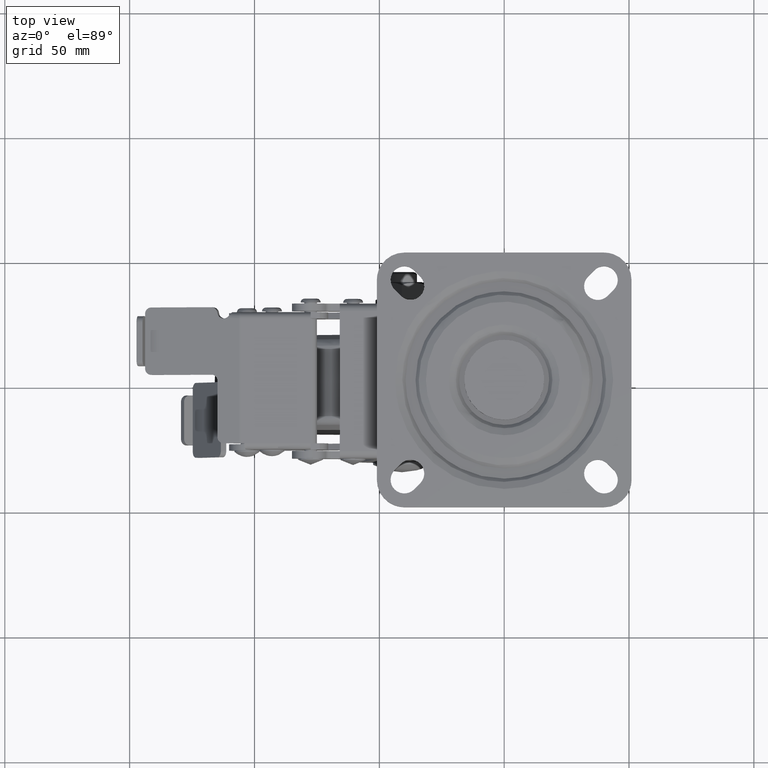
[diagram: clean part render]
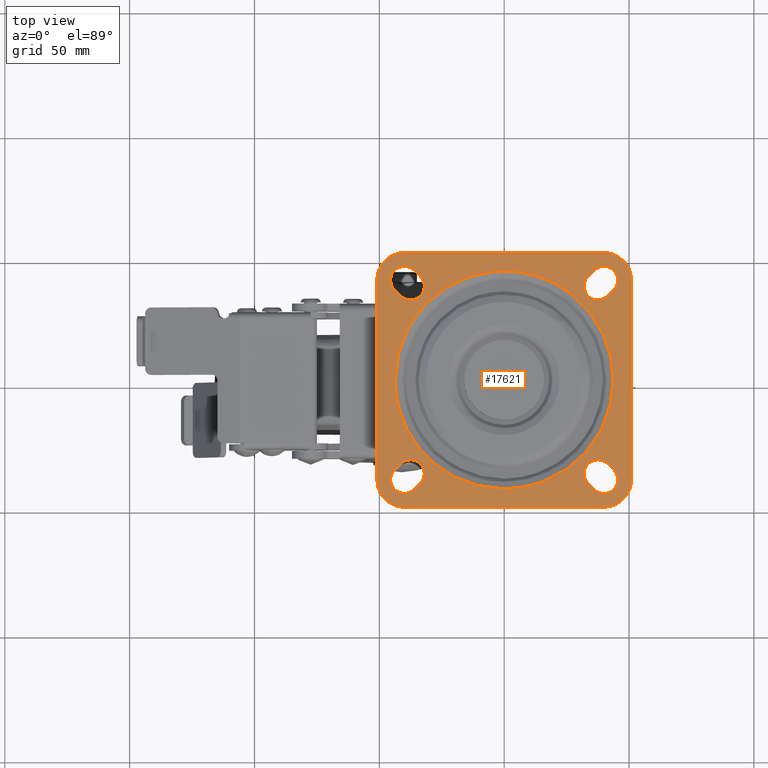
[diagram: same view with one face highlighted and labeled with its STEP entity id]
A machine part, top view. The second image highlights one B-rep face of the part: STEP entity #17621.
In plain terms, the highlighted face is a freeform B-spline surface patch.
Its self-contained STEP definition (entity closure, byte-faithful):
#15196=CARTESIAN_POINT('',(-31.063409348965632,30.675487315711461,-6.616970E-016));
#15197=VERTEX_POINT('',#15196);
#15206=CARTESIAN_POINT('',(-43.656854249492397,0.0,0.0));
#15207=VERTEX_POINT('',#15206);
#15208=CARTESIAN_POINT('',(-43.656854249492397,0.0,0.0));
#15209=CARTESIAN_POINT('',(-43.657094676701732,2.568753479589446,1.263276E-020));
#15210=CARTESIAN_POINT('',(-43.249130901961109,7.174710662789236,-2.142300E-017));
#15211=CARTESIAN_POINT('',(-41.840639443392362,12.771833170458660,-9.542932E-017));
#15212=CARTESIAN_POINT('',(-40.110068092057283,17.424648048929718,-1.863587E-016));
#15213=CARTESIAN_POINT('',(-38.036798606459712,21.646327459094980,-2.952944E-016));
#15214=CARTESIAN_POINT('',(-34.981101516812608,26.328111538988718,-4.558498E-016));
#15215=CARTESIAN_POINT('',(-32.494967146331042,29.225951224145781,-5.864787E-016));
#15216=CARTESIAN_POINT('',(-31.063409348965632,30.675487315711461,-6.616970E-016));
#15217=B_SPLINE_CURVE_WITH_KNOTS('',3,(#15208,#15209,#15210,#15211,#15212,#15213,#15214,#15215,#15216),.UNSPECIFIED.,.F.,.U.,(4,1,1,1,1,1,4),(0.000000030138622,7.706238756314757,13.818099330392760,17.272576375514632,22.587256896272141,27.901926071320290,34.013761547897673),.UNSPECIFIED.);
#15218=EDGE_CURVE('',#15207,#15197,#15217,.T.);
#15220=CARTESIAN_POINT('',(-0.000002615873769,-43.656854249492319,0.0));
#15221=VERTEX_POINT('',#15220);
#15222=CARTESIAN_POINT('',(-0.000002615873769,-43.656854249492319,0.0));
#15223=CARTESIAN_POINT('',(-2.232292481283396,-43.656964644520869,0.0));
#15224=CARTESIAN_POINT('',(-6.786154394111194,-43.306902367873192,0.0));
#15225=CARTESIAN_POINT('',(-12.712467260010920,-41.899453881532772,0.0));
#15226=CARTESIAN_POINT('',(-18.391882201621680,-39.728668671084087,0.0));
#15227=CARTESIAN_POINT('',(-23.438318790253270,-37.011389595821619,0.0));
#15228=CARTESIAN_POINT('',(-27.823110530619569,-33.759262033124863,0.0));
#15229=CARTESIAN_POINT('',(-31.555482666893919,-30.292063700294779,0.0));
#15230=CARTESIAN_POINT('',(-34.840018474554469,-26.508021563332161,0.0));
#15231=CARTESIAN_POINT('',(-37.709952672293532,-22.184077188269178,0.0));
#15232=CARTESIAN_POINT('',(-40.232451032873797,-17.248545465002611,0.0));
#15233=CARTESIAN_POINT('',(-42.027755901738992,-12.279180552996570,0.0));
#15234=CARTESIAN_POINT('',(-43.342661487103477,-6.250359249086327,0.0));
#15235=CARTESIAN_POINT('',(-43.657028453490781,-2.321587955392528,0.0));
#15236=CARTESIAN_POINT('',(-43.656854249492397,0.0,0.0));
#15237=B_SPLINE_CURVE_WITH_KNOTS('',3,(#15222,#15223,#15224,#15225,#15226,#15227,#15228,#15229,#15230,#15231,#15232,#15233,#15234,#15235,#15236),.UNSPECIFIED.,.F.,.U.,(4,1,1,1,1,1,1,1,1,1,1,1,4),(0.000000114990428,6.696875430314734,13.661633851993169,18.215535846731520,24.912438113287450,30.805695740028298,34.555871521751861,40.181295943328351,45.806685359043222,50.092718393921047,56.789616656660073,61.611390351655679,68.576132396053296),.UNSPECIFIED.);
#15238=EDGE_CURVE('',#15221,#15207,#15237,.T.);
#15240=CARTESIAN_POINT('',(43.656854249492397,0.0,0.0));
#15241=VERTEX_POINT('',#15240);
#15242=CARTESIAN_POINT('',(43.656854249492397,0.0,0.0));
#15243=CARTESIAN_POINT('',(43.656911053493857,-1.875112839022642,0.0));
#15244=CARTESIAN_POINT('',(43.397624633515939,-5.893224051031033,0.0));
#15245=CARTESIAN_POINT('',(42.245346803289387,-11.506341922616310,0.0));
#15246=CARTESIAN_POINT('',(40.571896241728624,-16.322184677023209,0.0));
#15247=CARTESIAN_POINT('',(38.535259709872911,-20.697625682114669,0.0));
#15248=CARTESIAN_POINT('',(36.177248459249647,-24.604507880084181,0.0));
#15249=CARTESIAN_POINT('',(32.739516325221629,-29.065824782522050,0.0));
#15250=CARTESIAN_POINT('',(28.495814805406201,-33.309657146128771,0.0));
#15251=CARTESIAN_POINT('',(22.774704649869911,-37.471644679807412,0.0));
#15252=CARTESIAN_POINT('',(16.370554281572861,-40.695316249103122,0.0));
#15253=CARTESIAN_POINT('',(8.661114773599014,-43.059760217632913,0.0));
#15254=CARTESIAN_POINT('',(3.125239384827216,-43.657379641262168,0.0));
#15255=CARTESIAN_POINT('',(-0.000002615873769,-43.656854249492319,0.0));
#15256=B_SPLINE_CURVE_WITH_KNOTS('',3,(#15242,#15243,#15244,#15245,#15246,#15247,#15248,#15249,#15250,#15251,#15252,#15253,#15254,#15255),.UNSPECIFIED.,.F.,.U.,(4,1,1,1,1,1,1,1,1,1,1,4),(0.000000114767701,5.625342946326555,12.054372987297899,17.144034664527261,20.894306517712430,26.519681358379291,30.805697065822169,37.770449006825231,44.467334690818419,51.967853875391107,59.200493764830973,68.576135344757489),.UNSPECIFIED.);
#15257=EDGE_CURVE('',#15241,#15221,#15256,.T.);
#15259=CARTESIAN_POINT('',(26.883605954656911,34.397567547690159,-6.915107E-016));
#15260=VERTEX_POINT('',#15259);
#15261=CARTESIAN_POINT('',(26.883605954656911,34.397567547690159,-6.915107E-016));
#15262=CARTESIAN_POINT('',(29.241130411770239,32.555636171881162,-5.943170E-016));
#15263=CARTESIAN_POINT('',(32.379137363472623,29.534896950902219,-4.649464E-016));
#15264=CARTESIAN_POINT('',(36.346235430819803,24.378094083148980,-3.013949E-016));
#15265=CARTESIAN_POINT('',(38.878849627484307,20.107017772243090,-1.969828E-016));
#15266=CARTESIAN_POINT('',(40.984188032175403,15.278244480548141,-1.101860E-016));
#15267=CARTESIAN_POINT('',(42.317704132470283,11.039969348256379,-5.520914E-017));
#15268=CARTESIAN_POINT('',(43.374635075274881,5.880218168848807,-1.163505E-017));
#15269=CARTESIAN_POINT('',(43.656986612610901,2.269580024070499,5.456934E-021));
#15270=CARTESIAN_POINT('',(43.656854249492397,0.0,0.0));
#15271=B_SPLINE_CURVE_WITH_KNOTS('',3,(#15261,#15262,#15263,#15264,#15265,#15266,#15267,#15268,#15269,#15270),.UNSPECIFIED.,.F.,.U.,(4,1,1,1,1,1,1,4),(0.000000037356038,8.975149693106552,12.998509924765310,19.497781677742331,23.830562743592651,28.782386486829459,32.805746718487512,39.614473624803779),.UNSPECIFIED.);
#15272=EDGE_CURVE('',#15260,#15241,#15271,.T.);
#15304=CARTESIAN_POINT('',(-31.063409348965632,30.675487315711461,-6.616970E-016));
#15305=CARTESIAN_POINT('',(-29.494286252176241,32.264612167614693,-5.724115E-016));
#15306=CARTESIAN_POINT('',(-25.986181034153709,35.310104183509857,-4.035050E-016));
#15307=CARTESIAN_POINT('',(-20.698543932166071,38.594331989333831,-2.279820E-016));
#15308=CARTESIAN_POINT('',(-14.872998412636420,41.191587489349118,-9.641131E-017));
#15309=CARTESIAN_POINT('',(-9.772608106996106,42.674670822263657,-2.909175E-017));
#15310=CARTESIAN_POINT('',(-4.128011443791797,43.557047795552577,-5.304229E-019));
#15311=CARTESIAN_POINT('',(0.593542241657433,43.752699132709253,-9.474522E-018));
#15312=CARTESIAN_POINT('',(5.878434222143921,43.354958814068098,-5.681832E-017));
#15313=CARTESIAN_POINT('',(11.414885695858599,42.297306395855792,-1.452158E-016));
#15314=CARTESIAN_POINT('',(16.589123261579800,40.503374773328993,-2.765875E-016));
#15315=CARTESIAN_POINT('',(21.941009575475750,37.878769003231113,-4.590241E-016));
#15316=CARTESIAN_POINT('',(24.993777877233612,35.874817846379820,-5.937687E-016));
#15317=CARTESIAN_POINT('',(26.883605954656911,34.397567547690159,-6.915107E-016));
#15318=B_SPLINE_CURVE_WITH_KNOTS('',3,(#15304,#15305,#15306,#15307,#15308,#15309,#15310,#15311,#15312,#15313,#15314,#15315,#15316,#15317),.UNSPECIFIED.,.F.,.U.,(4,1,1,1,1,1,1,1,1,1,1,4),(0.000000097951130,6.699793466448803,13.895881243765761,18.610563842135910,25.806690639320429,29.776936463917441,35.732224230608452,39.950657142269279,45.657892255311133,52.605847655985521,56.328000340471213,63.524038375259238),.UNSPECIFIED.);
#15319=EDGE_CURVE('',#15197,#15260,#15318,.T.);
#16202=CARTESIAN_POINT('',(-41.389091296521151,33.610916703473400,0.0));
#16203=VERTEX_POINT('',#16202);
#16209=CARTESIAN_POINT('',(-33.617862242941740,33.603975560238013,0.0));
#16210=VERTEX_POINT('',#16209);
#16211=CARTESIAN_POINT('',(-41.389091296521151,33.610916703473400,0.0));
#16212=CARTESIAN_POINT('',(-40.881050819658839,33.101740828529373,0.0));
#16213=CARTESIAN_POINT('',(-39.966358915819008,32.491834230854280,0.0));
#16214=CARTESIAN_POINT('',(-38.583517263154242,32.071728605454318,0.0));
#16215=CARTESIAN_POINT('',(-37.415051195359752,31.955649538697980,0.0));
#16216=CARTESIAN_POINT('',(-36.246391489401937,32.098550787867360,0.0));
#16217=CARTESIAN_POINT('',(-34.885023027026620,32.583705450381977,0.0));
#16218=CARTESIAN_POINT('',(-34.063297819787479,33.159428258038211,0.0));
#16219=CARTESIAN_POINT('',(-33.617862242941740,33.603975560238013,0.0));
#16220=B_SPLINE_CURVE_WITH_KNOTS('',3,(#16211,#16212,#16213,#16214,#16215,#16216,#16217,#16218,#16219),.UNSPECIFIED.,.F.,.U.,(4,1,1,1,1,1,4),(0.000000080916635,2.157445785911436,3.236193782788563,4.314891107872996,5.663268789133289,6.742028551193632,8.629782140121275),.UNSPECIFIED.);
#16221=EDGE_CURVE('',#16203,#16210,#16220,.T.);
#16223=CARTESIAN_POINT('',(-33.597049696237399,41.375174696237600,0.0));
#16224=VERTEX_POINT('',#16223);
#16225=CARTESIAN_POINT('',(-33.617862242941740,33.603975560238013,0.0));
#16226=CARTESIAN_POINT('',(-33.107758314272957,34.111098683272722,0.0));
#16227=CARTESIAN_POINT('',(-32.496323161502332,35.024732057296532,0.0));
#16228=CARTESIAN_POINT('',(-32.020681973483327,36.579501715436457,0.0));
#16229=CARTESIAN_POINT('',(-31.945345753018849,38.031459494042053,0.0));
#16230=CARTESIAN_POINT('',(-32.381829366535293,39.795643315244739,0.0));
#16231=CARTESIAN_POINT('',(-33.089727383901419,40.865326962262543,0.0));
#16232=CARTESIAN_POINT('',(-33.597049696237399,41.375174696237600,0.0));
#16233=B_SPLINE_CURVE_WITH_KNOTS('',3,(#16225,#16226,#16227,#16228,#16229,#16230,#16231,#16232),.UNSPECIFIED.,.F.,.U.,(4,1,1,1,1,4),(0.000000080913285,2.157443967377343,3.236191054939396,4.854233312697584,6.472331168401698,8.629774865999393),.UNSPECIFIED.);
#16234=EDGE_CURVE('',#16210,#16224,#16233,.T.);
#16279=CARTESIAN_POINT('',(-43.889092183694203,36.110917590648299,0.0));
#16280=VERTEX_POINT('',#16279);
#16286=CARTESIAN_POINT('',(-43.889092183694203,36.110917590648299,0.0));
#16287=CARTESIAN_POINT('',(-41.389091296521151,33.610916703473400,0.0));
#16288=QUASI_UNIFORM_CURVE('',1,(#16286,#16287),.UNSPECIFIED.,.F.,.U.);
#16289=EDGE_CURVE('',#16280,#16203,#16288,.T.);
#16320=CARTESIAN_POINT('',(-36.124825303777712,43.902950303777700,0.0));
#16321=VERTEX_POINT('',#16320);
#16327=CARTESIAN_POINT('',(-43.896025138124777,43.882137056197237,0.0));
#16328=VERTEX_POINT('',#16327);
#16329=CARTESIAN_POINT('',(-36.124825303777712,43.902950303777700,0.0));
#16330=CARTESIAN_POINT('',(-36.571058367077562,44.346700632489231,0.0));
#16331=CARTESIAN_POINT('',(-37.318995096611467,44.868763921525492,0.0));
#16332=CARTESIAN_POINT('',(-38.497797996751160,45.319160528066810,0.0));
#16333=CARTESIAN_POINT('',(-39.561446683324903,45.527677723081240,0.0));
#16334=CARTESIAN_POINT('',(-40.738386516807132,45.495610176541703,0.0));
#16335=CARTESIAN_POINT('',(-41.876731080859827,45.207536182099354,0.0));
#16336=CARTESIAN_POINT('',(-42.937119075230882,44.703148748469530,0.0));
#16337=CARTESIAN_POINT('',(-43.578862325559420,44.200610906968869,0.0));
#16338=CARTESIAN_POINT('',(-43.896025138124777,43.882137056197237,0.0));
#16339=B_SPLINE_CURVE_WITH_KNOTS('',3,(#16329,#16330,#16331,#16332,#16333,#16334,#16335,#16336,#16337,#16338),.UNSPECIFIED.,.F.,.U.,(4,1,1,1,1,1,1,4),(0.000000080920318,1.887752395738672,2.696825068613967,3.775541044657916,5.123906972319567,6.202640179715648,7.281399156114598,8.629775855454277),.UNSPECIFIED.);
#16340=EDGE_CURVE('',#16321,#16328,#16339,.T.);
#16342=CARTESIAN_POINT('',(-43.896025138124777,43.882137056197237,0.0));
#16343=CARTESIAN_POINT('',(-44.404290076155050,43.373190512970972,0.0));
#16344=CARTESIAN_POINT('',(-45.012563651038342,42.457409530621263,0.0));
#16345=CARTESIAN_POINT('',(-45.430200268841517,41.073822482117393,0.0));
#16346=CARTESIAN_POINT('',(-45.535378887090978,39.995057811374153,0.0));
#16347=CARTESIAN_POINT('',(-45.428253978209291,38.916512152808693,0.0));
#16348=CARTESIAN_POINT('',(-45.008254391599777,37.533588110131262,0.0));
#16349=CARTESIAN_POINT('',(-44.398183259573493,36.619016571055937,0.0));
#16350=CARTESIAN_POINT('',(-43.889092183694203,36.110917590648299,0.0));
#16351=B_SPLINE_CURVE_WITH_KNOTS('',3,(#16342,#16343,#16344,#16345,#16346,#16347,#16348,#16349,#16350),.UNSPECIFIED.,.F.,.U.,(4,1,1,1,1,1,4),(0.000000080915173,2.157442396215764,3.236188698152811,4.314884328485145,5.393578955839081,6.472326454912807,8.629768581346763),.UNSPECIFIED.);
#16352=EDGE_CURVE('',#16328,#16280,#16351,.T.);
#16390=CARTESIAN_POINT('',(-33.597049696237399,41.375174696237600,0.0));
#16391=CARTESIAN_POINT('',(-36.124825303777712,43.902950303777700,0.0));
#16392=QUASI_UNIFORM_CURVE('',1,(#16390,#16391),.UNSPECIFIED.,.F.,.U.);
#16393=EDGE_CURVE('',#16224,#16321,#16392,.T.);
#16424=CARTESIAN_POINT('',(43.889087000000004,36.110905000000102,0.0));
#16425=VERTEX_POINT('',#16424);
#16431=CARTESIAN_POINT('',(43.894881573580072,43.883280088315033,0.0));
#16432=VERTEX_POINT('',#16431);
#16433=CARTESIAN_POINT('',(43.889087000000004,36.110905000000102,0.0));
#16434=CARTESIAN_POINT('',(44.398360291232507,36.619040293944792,0.0));
#16435=CARTESIAN_POINT('',(45.008341671216662,37.533932999339918,0.0));
#16436=CARTESIAN_POINT('',(45.428419530224367,38.917078255078877,0.0));
#16437=CARTESIAN_POINT('',(45.526446096474842,39.905967058077252,0.0));
#16438=CARTESIAN_POINT('',(45.454317151397177,40.895000908674888,0.0));
#16439=CARTESIAN_POINT('',(45.213832503442838,41.859226264504102,0.0));
#16440=CARTESIAN_POINT('',(44.712887827668759,42.921495924733748,0.0));
#16441=CARTESIAN_POINT('',(44.212373428160163,43.565013906223463,0.0));
#16442=CARTESIAN_POINT('',(43.894881573580072,43.883280088315033,0.0));
#16443=B_SPLINE_CURVE_WITH_KNOTS('',3,(#16433,#16434,#16435,#16436,#16437,#16438,#16439,#16440,#16441,#16442),.UNSPECIFIED.,.F.,.U.,(4,1,1,1,1,1,1,4),(0.000000080976465,2.157850056626775,3.236800199927794,4.315699649033621,5.124870838524497,6.203806968248874,7.282768885249133,8.631399222393039),.UNSPECIFIED.);
#16444=EDGE_CURVE('',#16425,#16432,#16443,.T.);
#16446=CARTESIAN_POINT('',(36.122528926625137,43.900668926625663,0.0));
#16447=VERTEX_POINT('',#16446);
#16448=CARTESIAN_POINT('',(43.894881573580072,43.883280088315033,0.0));
#16449=CARTESIAN_POINT('',(43.387506430742597,44.393309226866037,0.0));
#16450=CARTESIAN_POINT('',(42.473524738759480,45.004656212028173,0.0));
#16451=CARTESIAN_POINT('',(41.091010091356033,45.426791983389982,0.0));
#16452=CARTESIAN_POINT('',(40.102268641135382,45.526294802848682,0.0));
#16453=CARTESIAN_POINT('',(39.023207994055987,45.449244080882274,0.0));
#16454=CARTESIAN_POINT('',(37.625272250468562,45.066374652436977,0.0));
#16455=CARTESIAN_POINT('',(36.632183613369932,44.408391081585201,0.0));
#16456=CARTESIAN_POINT('',(36.122528926625137,43.900668926625663,0.0));
#16457=B_SPLINE_CURVE_WITH_KNOTS('',3,(#16448,#16449,#16450,#16451,#16452,#16453,#16454,#16455,#16456),.UNSPECIFIED.,.F.,.U.,(4,1,1,1,1,1,4),(0.000000080973374,2.157848237162926,3.236797470683907,4.315696010110595,5.124866517339374,6.473543977326817,8.631391944549343),.UNSPECIFIED.);
#16458=EDGE_CURVE('',#16432,#16447,#16457,.T.);
#16510=CARTESIAN_POINT('',(33.599331073345603,41.377471073345802,0.0));
#16511=VERTEX_POINT('',#16510);
#16512=CARTESIAN_POINT('',(33.599331073345603,41.377471073345802,0.0));
#16513=CARTESIAN_POINT('',(36.122528926625137,43.900668926625663,0.0));
#16514=QUASI_UNIFORM_CURVE('',1,(#16512,#16513),.UNSPECIFIED.,.F.,.U.);
#16515=EDGE_CURVE('',#16511,#16447,#16514,.T.);
#16544=CARTESIAN_POINT('',(33.616693612113473,33.605102772628747,0.0));
#16545=VERTEX_POINT('',#16544);
#16546=CARTESIAN_POINT('',(33.599331073345603,41.377471073345802,0.0));
#16547=CARTESIAN_POINT('',(33.218821414989662,40.995049724401362,0.0));
#16548=CARTESIAN_POINT('',(32.679871689814647,40.263289919926009,0.0));
#16549=CARTESIAN_POINT('',(32.198921759215359,39.093499069012182,0.0));
#16550=CARTESIAN_POINT('',(31.972532517394701,37.941075561823673,0.0));
#16551=CARTESIAN_POINT('',(32.008741509976012,36.582753758441250,0.0));
#16552=CARTESIAN_POINT('',(32.486674424812797,35.018169907747932,0.0));
#16553=CARTESIAN_POINT('',(33.170654054183380,34.049189726829873,0.0));
#16554=CARTESIAN_POINT('',(33.616693612113473,33.605102772628747,0.0));
#16555=B_SPLINE_CURVE_WITH_KNOTS('',3,(#16546,#16547,#16548,#16549,#16550,#16551,#16552,#16553,#16554),.UNSPECIFIED.,.F.,.U.,(4,1,1,1,1,1,4),(0.000000080976463,1.618369439590280,2.697337001009656,3.776257736594531,5.124879614606756,6.743303450802676,8.631414003284526),.UNSPECIFIED.);
#16556=EDGE_CURVE('',#16511,#16545,#16555,.T.);
#16558=CARTESIAN_POINT('',(41.389073999999702,33.610892000000050,0.0));
#16559=VERTEX_POINT('',#16558);
#16560=CARTESIAN_POINT('',(33.616693612113473,33.605102772628747,0.0));
#16561=CARTESIAN_POINT('',(34.125585849613927,33.096567755451559,0.0));
#16562=CARTESIAN_POINT('',(35.041396637914453,32.488041267229057,0.0));
#16563=CARTESIAN_POINT('',(36.598105043243883,32.017527443325640,0.0));
#16564=CARTESIAN_POINT('',(37.868939780952658,31.956045593778470,0.0));
#16565=CARTESIAN_POINT('',(39.020665812371547,32.186078938518158,0.0));
#16566=CARTESIAN_POINT('',(40.198143347494756,32.640628809981663,0.0));
#16567=CARTESIAN_POINT('',(40.944310232574672,33.165506987081692,0.0));
#16568=CARTESIAN_POINT('',(41.389073999999702,33.610892000000050,0.0));
#16569=B_SPLINE_CURVE_WITH_KNOTS('',3,(#16560,#16561,#16562,#16563,#16564,#16565,#16566,#16567,#16568),.UNSPECIFIED.,.F.,.U.,(4,1,1,1,1,1,4),(0.000000080973907,2.157851932378405,3.236803013608311,4.855151230783978,5.934071747387980,6.743297764930545,8.631406725406675),.UNSPECIFIED.);
#16570=EDGE_CURVE('',#16545,#16559,#16569,.T.);
#16619=CARTESIAN_POINT('',(43.889087000000004,36.110905000000102,0.0));
#16620=CARTESIAN_POINT('',(41.389073999999702,33.610892000000050,0.0));
#16621=QUASI_UNIFORM_CURVE('',1,(#16619,#16620),.UNSPECIFIED.,.F.,.U.);
#16622=EDGE_CURVE('',#16425,#16559,#16621,.T.);
#16648=CARTESIAN_POINT('',(36.110900999999799,-43.889082000000052,0.0));
#16649=VERTEX_POINT('',#16648);
#16655=CARTESIAN_POINT('',(43.883895282044961,-43.894260188980333,0.0));
#16656=VERTEX_POINT('',#16655);
#16657=CARTESIAN_POINT('',(36.110900999999799,-43.889082000000052,0.0));
#16658=CARTESIAN_POINT('',(36.619086675388417,-44.398407132464222,0.0));
#16659=CARTESIAN_POINT('',(37.534089058909608,-45.008434207096180,0.0));
#16660=CARTESIAN_POINT('',(38.917396215663061,-45.428486878279848,0.0));
#16661=CARTESIAN_POINT('',(39.906389141864373,-45.526432938484760,0.0));
#16662=CARTESIAN_POINT('',(41.075404701313381,-45.441273078913703,0.0));
#16663=CARTESIAN_POINT('',(42.467480128093527,-45.020365900110157,0.0));
#16664=CARTESIAN_POINT('',(43.438507269348612,-44.339094291741837,0.0));
#16665=CARTESIAN_POINT('',(43.883895282044961,-43.894260188980333,0.0));
#16666=B_SPLINE_CURVE_WITH_KNOTS('',3,(#16657,#16658,#16659,#16660,#16661,#16662,#16663,#16664,#16665),.UNSPECIFIED.,.F.,.U.,(4,1,1,1,1,1,4),(0.000000081010180,2.158068720233912,3.237128201335241,4.316136976101337,5.125390160131817,6.743975230193250,8.632273876502680),.UNSPECIFIED.);
#16667=EDGE_CURVE('',#16649,#16656,#16666,.T.);
#16669=CARTESIAN_POINT('',(43.899431855316500,-36.121284851172902,0.0));
#16670=VERTEX_POINT('',#16669);
#16671=CARTESIAN_POINT('',(43.883895282044961,-43.894260188980333,0.0));
#16672=CARTESIAN_POINT('',(44.393912914829407,-43.386754149858092,0.0));
#16673=CARTESIAN_POINT('',(45.005075481457808,-42.472560525561370,0.0));
#16674=CARTESIAN_POINT('',(45.479930592419507,-40.916998027414827,0.0));
#16675=CARTESIAN_POINT('',(45.540302264108050,-39.737002360750218,0.0));
#16676=CARTESIAN_POINT('',(45.342152176349153,-38.581734213597137,0.0));
#16677=CARTESIAN_POINT('',(44.918891704745782,-37.389730978028510,0.0));
#16678=CARTESIAN_POINT('',(44.343699751489787,-36.567243359117448,0.0));
#16679=CARTESIAN_POINT('',(43.899431855316500,-36.121284851172902,0.0));
#16680=B_SPLINE_CURVE_WITH_KNOTS('',3,(#16671,#16672,#16673,#16674,#16675,#16676,#16677,#16678,#16679),.UNSPECIFIED.,.F.,.U.,(4,1,1,1,1,1,4),(0.000000081004794,2.158066903385937,3.237125476016016,4.855634913886906,5.664899201614929,6.743969552527116,8.632266609128047),.UNSPECIFIED.);
#16681=EDGE_CURVE('',#16656,#16670,#16680,.T.);
#16732=CARTESIAN_POINT('',(41.378527047411552,-33.600381051628602,0.0));
#16733=VERTEX_POINT('',#16732);
#16734=CARTESIAN_POINT('',(41.378527047411552,-33.600381051628602,0.0));
#16735=CARTESIAN_POINT('',(43.899431855316500,-36.121284851172902,0.0));
#16736=QUASI_UNIFORM_CURVE('',1,(#16734,#16735),.UNSPECIFIED.,.F.,.U.);
#16737=EDGE_CURVE('',#16733,#16670,#16736,.T.);
#16766=CARTESIAN_POINT('',(33.605633335770570,-33.616176092322277,0.0));
#16767=VERTEX_POINT('',#16766);
#16768=CARTESIAN_POINT('',(41.378527047411552,-33.600381051628602,0.0));
#16769=CARTESIAN_POINT('',(40.996151938804331,-33.219784390717130,0.0));
#16770=CARTESIAN_POINT('',(40.118248511758559,-32.572474498683157,0.0));
#16771=CARTESIAN_POINT('',(38.662193419050482,-32.055323444385657,0.0));
#16772=CARTESIAN_POINT('',(37.306723981262472,-31.958315088660161,0.0));
#16773=CARTESIAN_POINT('',(36.234605212313589,-32.119567425952980,0.0));
#16774=CARTESIAN_POINT('',(34.951071199944288,-32.545827757620437,0.0));
#16775=CARTESIAN_POINT('',(34.113137598233948,-33.106179221818273,0.0));
#16776=CARTESIAN_POINT('',(33.605633335770570,-33.616176092322277,0.0));
#16777=B_SPLINE_CURVE_WITH_KNOTS('',3,(#16768,#16769,#16770,#16771,#16772,#16773,#16774,#16775,#16776),.UNSPECIFIED.,.F.,.U.,(4,1,1,1,1,1,4),(0.000000080997948,1.618507835621142,3.237082550612400,4.585824310179953,5.664824084488856,6.474114126555184,8.632152143514023),.UNSPECIFIED.);
#16778=EDGE_CURVE('',#16733,#16767,#16777,.T.);
#16780=CARTESIAN_POINT('',(33.610898926999553,-41.389078926999453,0.0));
#16781=VERTEX_POINT('',#16780);
#16782=CARTESIAN_POINT('',(33.605633335770570,-33.616176092322277,0.0));
#16783=CARTESIAN_POINT('',(33.097052912080201,-34.125036791219529,0.0));
#16784=CARTESIAN_POINT('',(32.386593439992993,-35.193495665185580,0.0));
#16785=CARTESIAN_POINT('',(31.990485831275709,-36.780885926476259,0.0));
#16786=CARTESIAN_POINT('',(31.991573376811129,-37.955466749857507,0.0));
#16787=CARTESIAN_POINT('',(32.161607310631993,-38.932515660385661,0.0));
#16788=CARTESIAN_POINT('',(32.588047364536990,-40.123399052013070,0.0));
#16789=CARTESIAN_POINT('',(33.165477019488499,-40.944285420474749,0.0));
#16790=CARTESIAN_POINT('',(33.610898926999553,-41.389078926999453,0.0));
#16791=B_SPLINE_CURVE_WITH_KNOTS('',3,(#16782,#16783,#16784,#16785,#16786,#16787,#16788,#16789,#16790),.UNSPECIFIED.,.F.,.U.,(4,1,1,1,1,1,4),(0.000000081004400,2.158036470201187,3.776577494597984,4.855566439450820,5.664819315518783,6.743874448363564,8.632144876418812),.UNSPECIFIED.);
#16792=EDGE_CURVE('',#16767,#16781,#16791,.T.);
#16841=CARTESIAN_POINT('',(36.110900999999799,-43.889082000000052,0.0));
#16842=CARTESIAN_POINT('',(33.610898926999553,-41.389078926999453,0.0));
#16843=QUASI_UNIFORM_CURVE('',1,(#16841,#16842),.UNSPECIFIED.,.F.,.U.);
#16844=EDGE_CURVE('',#16649,#16781,#16843,.T.);
#16870=CARTESIAN_POINT('',(-43.889083000000213,-36.110888999999752,0.0));
#16871=VERTEX_POINT('',#16870);
#16877=CARTESIAN_POINT('',(-43.894536698930267,-43.883610422727038,0.0));
#16878=VERTEX_POINT('',#16877);
#16879=CARTESIAN_POINT('',(-43.889083000000213,-36.110888999999752,0.0));
#16880=CARTESIAN_POINT('',(-44.398292396135702,-36.619116409598192,0.0));
#16881=CARTESIAN_POINT('',(-45.008486554436807,-37.533943781071649,0.0));
#16882=CARTESIAN_POINT('',(-45.428424856271327,-38.917257912193278,0.0));
#16883=CARTESIAN_POINT('',(-45.535390648030763,-39.996099009828860,0.0));
#16884=CARTESIAN_POINT('',(-45.429953763377569,-41.075095913653662,0.0));
#16885=CARTESIAN_POINT('',(-45.011862391598640,-42.458927185057703,0.0));
#16886=CARTESIAN_POINT('',(-44.403117654513089,-43.374730327093602,0.0));
#16887=CARTESIAN_POINT('',(-43.894536698930267,-43.883610422727038,0.0));
#16888=B_SPLINE_CURVE_WITH_KNOTS('',3,(#16879,#16880,#16881,#16882,#16883,#16884,#16885,#16886,#16887),.UNSPECIFIED.,.F.,.U.,(4,1,1,1,1,1,4),(0.000000080994337,2.157971881813294,3.236982941020901,4.315943299325971,5.394902653794256,6.473914911141415,8.631886522963177),.UNSPECIFIED.);
#16889=EDGE_CURVE('',#16871,#16878,#16888,.T.);
#16891=CARTESIAN_POINT('',(-36.121835741196200,-43.899979741195750,0.0));
#16892=VERTEX_POINT('',#16891);
#16893=CARTESIAN_POINT('',(-43.894536698930267,-43.883610422727038,0.0));
#16894=CARTESIAN_POINT('',(-43.387035332890363,-44.393556356559877,0.0));
#16895=CARTESIAN_POINT('',(-42.473037351961487,-45.004948464298877,0.0));
#16896=CARTESIAN_POINT('',(-41.003937742222000,-45.453352247975332,0.0));
#16897=CARTESIAN_POINT('',(-39.829668529221081,-45.542390845230322,0.0));
#16898=CARTESIAN_POINT('',(-38.667503492681128,-45.372601403389737,0.0));
#16899=CARTESIAN_POINT('',(-37.390362044245968,-44.919199111821207,0.0));
#16900=CARTESIAN_POINT('',(-36.567842911645997,-44.344172937521783,0.0));
#16901=CARTESIAN_POINT('',(-36.121835741196200,-43.899979741195750,0.0));
#16902=B_SPLINE_CURVE_WITH_KNOTS('',3,(#16893,#16894,#16895,#16896,#16897,#16898,#16899,#16900,#16901),.UNSPECIFIED.,.F.,.U.,(4,1,1,1,1,1,4),(0.000000080994841,2.157970065194864,3.236980216043409,4.585679338801038,5.664645004654673,6.743666931711656,8.631879256491205),.UNSPECIFIED.);
#16903=EDGE_CURVE('',#16878,#16892,#16902,.T.);
#16955=CARTESIAN_POINT('',(-33.600020258824699,-41.378164258824199,0.0));
#16956=VERTEX_POINT('',#16955);
#16957=CARTESIAN_POINT('',(-33.600020258824699,-41.378164258824199,0.0));
#16958=CARTESIAN_POINT('',(-36.121835741196200,-43.899979741195750,0.0));
#16959=QUASI_UNIFORM_CURVE('',1,(#16957,#16958),.UNSPECIFIED.,.F.,.U.);
#16960=EDGE_CURVE('',#16956,#16892,#16959,.T.);
#16989=CARTESIAN_POINT('',(-33.616347485097592,-33.605440843513442,0.0));
#16990=VERTEX_POINT('',#16989);
#16991=CARTESIAN_POINT('',(-33.600020258824699,-41.378164258824199,0.0));
#16992=CARTESIAN_POINT('',(-33.092233122363169,-40.868511570575002,0.0));
#16993=CARTESIAN_POINT('',(-32.484608468718982,-39.951976369739540,0.0));
#16994=CARTESIAN_POINT('',(-32.068530315816894,-38.567487224824617,0.0));
#16995=CARTESIAN_POINT('',(-31.973290107566338,-37.578280563454378,0.0));
#16996=CARTESIAN_POINT('',(-32.048240644912731,-36.589400809994302,0.0));
#16997=CARTESIAN_POINT('',(-32.313573835301170,-35.538181082047650,0.0));
#16998=CARTESIAN_POINT('',(-32.844847475049129,-34.487149996509551,0.0));
#16999=CARTESIAN_POINT('',(-33.361667470601773,-33.859370855631212,0.0));
#17000=CARTESIAN_POINT('',(-33.616347485097592,-33.605440843513442,0.0));
#17001=B_SPLINE_CURVE_WITH_KNOTS('',3,(#16991,#16992,#16993,#16994,#16995,#16996,#16997,#16998,#16999,#17000),.UNSPECIFIED.,.F.,.U.,(4,1,1,1,1,1,1,4),(0.000000080987606,2.157977937858719,3.236992025257083,4.315955411420295,5.125174553870782,6.204174624653161,7.552948364832991,8.631910747157955),.UNSPECIFIED.);
#17002=EDGE_CURVE('',#16956,#16990,#17001,.T.);
#17004=CARTESIAN_POINT('',(-41.389081000000203,-33.610885999999951,0.0));
#17005=VERTEX_POINT('',#17004);
#17006=CARTESIAN_POINT('',(-33.616347485097592,-33.605440843513442,0.0));
#17007=CARTESIAN_POINT('',(-34.125224577239997,-33.096850502786111,0.0));
#17008=CARTESIAN_POINT('',(-35.041034809050643,-32.488124456074686,0.0));
#17009=CARTESIAN_POINT('',(-36.424859765569039,-32.069999165618462,0.0));
#17010=CARTESIAN_POINT('',(-37.413947415097013,-31.973391614713378,0.0));
#17011=CARTESIAN_POINT('',(-38.402933307879671,-32.046959090923409,0.0));
#17012=CARTESIAN_POINT('',(-39.366864269867207,-32.288865469272672,0.0));
#17013=CARTESIAN_POINT('',(-40.428456826528461,-32.791403646647353,0.0));
#17014=CARTESIAN_POINT('',(-41.071271546546178,-33.292900247733151,0.0));
#17015=CARTESIAN_POINT('',(-41.389081000000203,-33.610885999999951,0.0));
#17016=B_SPLINE_CURVE_WITH_KNOTS('',3,(#17006,#17007,#17008,#17009,#17010,#17011,#17012,#17013,#17014,#17015),.UNSPECIFIED.,.F.,.U.,(4,1,1,1,1,1,1,4),(0.000000080996795,2.157976121232681,3.236989300263767,4.315951778160613,5.125170239408678,6.204169401867377,7.283194357232179,8.631903480630843),.UNSPECIFIED.);
#17017=EDGE_CURVE('',#16990,#17005,#17016,.T.);
#17067=CARTESIAN_POINT('',(-43.889083000000213,-36.110888999999752,0.0));
#17068=CARTESIAN_POINT('',(-41.389081000000203,-33.610885999999951,0.0));
#17069=QUASI_UNIFORM_CURVE('',1,(#17067,#17068),.UNSPECIFIED.,.F.,.U.);
#17070=EDGE_CURVE('',#16871,#17005,#17069,.T.);
#17214=CARTESIAN_POINT('',(39.999977896509812,50.999999999997698,0.0));
#17215=VERTEX_POINT('',#17214);
#17221=CARTESIAN_POINT('',(50.999984999999803,40.0,0.0));
#17222=VERTEX_POINT('',#17221);
#17223=CARTESIAN_POINT('',(50.999984999999803,40.0,0.0));
#17224=CARTESIAN_POINT('',(51.000112612690920,40.809931615242917,0.0));
#17225=CARTESIAN_POINT('',(50.805393463125242,42.564811005458800,0.0));
#17226=CARTESIAN_POINT('',(49.997103940900018,44.781291623006702,0.0));
#17227=CARTESIAN_POINT('',(48.824961971472113,46.657130499100347,0.0));
#17228=CARTESIAN_POINT('',(47.709831807207451,47.902812869825112,0.0));
#17229=CARTESIAN_POINT('',(46.323436154709420,49.054906616865452,0.0));
#17230=CARTESIAN_POINT('',(44.810990553857323,49.961492294046003,0.0));
#17231=CARTESIAN_POINT('',(42.609615672460073,50.779758870885964,0.0));
#17232=CARTESIAN_POINT('',(40.989945278348678,51.000344232675580,0.0));
#17233=CARTESIAN_POINT('',(39.999977896509812,50.999999999997698,0.0));
#17234=B_SPLINE_CURVE_WITH_KNOTS('',3,(#17223,#17224,#17225,#17226,#17227,#17228,#17229,#17230,#17231,#17232,#17233),.UNSPECIFIED.,.F.,.U.,(4,1,1,1,1,1,1,1,4),(0.000000223624234,2.429808390644709,5.264673438797260,7.019593375690732,9.044380342806157,10.259280624206710,12.419180630990430,14.309083702528589,17.278872015306028),.UNSPECIFIED.);
#17235=EDGE_CURVE('',#17222,#17215,#17234,.T.);
#17258=CARTESIAN_POINT('',(50.999984999999803,-40.0,0.0));
#17259=VERTEX_POINT('',#17258);
#17260=CARTESIAN_POINT('',(50.999984999999803,-40.0,0.0));
#17261=CARTESIAN_POINT('',(50.999984999999803,40.0,0.0));
#17262=QUASI_UNIFORM_CURVE('',1,(#17260,#17261),.UNSPECIFIED.,.F.,.U.);
#17263=EDGE_CURVE('',#17259,#17222,#17262,.T.);
#17303=CARTESIAN_POINT('',(39.999984999999803,-51.0,0.0));
#17304=VERTEX_POINT('',#17303);
#17305=CARTESIAN_POINT('',(39.999984999999803,-51.0,0.0));
#17306=CARTESIAN_POINT('',(40.584934630000753,-51.000025901047572,0.0));
#17307=CARTESIAN_POINT('',(41.979848288839442,-50.888559510545001,0.0));
#17308=CARTESIAN_POINT('',(43.899647318285183,-50.357350473252353,0.0));
#17309=CARTESIAN_POINT('',(45.921882863580286,-49.354876620156723,0.0));
#17310=CARTESIAN_POINT('',(47.752106494602558,-47.944741698432097,0.0));
#17311=CARTESIAN_POINT('',(49.406544688159933,-45.903369908128973,0.0));
#17312=CARTESIAN_POINT('',(50.666589231755999,-43.239444136066197,0.0));
#17313=CARTESIAN_POINT('',(51.000584059024050,-41.169980979672943,0.0));
#17314=CARTESIAN_POINT('',(50.999984999999803,-40.0,0.0));
#17315=B_SPLINE_CURVE_WITH_KNOTS('',3,(#17305,#17306,#17307,#17308,#17309,#17310,#17311,#17312,#17313,#17314),.UNSPECIFIED.,.F.,.U.,(4,1,1,1,1,1,1,4),(0.000000224875706,1.754865605204834,4.184725113123299,5.939623603379163,8.504509479075876,11.069236381081550,13.769103082280930,17.278868011637499),.UNSPECIFIED.);
#17316=EDGE_CURVE('',#17304,#17259,#17315,.T.);
#17339=CARTESIAN_POINT('',(-39.999977544248303,-51.0,0.0));
#17340=VERTEX_POINT('',#17339);
#17341=CARTESIAN_POINT('',(-39.999977544248303,-51.0,0.0));
#17342=CARTESIAN_POINT('',(39.999984999999803,-51.0,0.0));
#17343=QUASI_UNIFORM_CURVE('',1,(#17341,#17342),.UNSPECIFIED.,.F.,.U.);
#17344=EDGE_CURVE('',#17340,#17304,#17343,.T.);
#17385=CARTESIAN_POINT('',(-50.999981000000197,-40.0,0.0));
#17386=VERTEX_POINT('',#17385);
#17387=CARTESIAN_POINT('',(-50.999981000000197,-40.0,0.0));
#17388=CARTESIAN_POINT('',(-51.000175512189358,-40.854960436071721,0.0));
#17389=CARTESIAN_POINT('',(-50.841758520298171,-42.204756647715243,0.0));
#17390=CARTESIAN_POINT('',(-50.254026222618123,-44.100093889126171,0.0));
#17391=CARTESIAN_POINT('',(-49.343098486420338,-45.967296600905627,0.0));
#17392=CARTESIAN_POINT('',(-48.020775436775722,-47.640155339419977,0.0));
#17393=CARTESIAN_POINT('',(-46.191005655825677,-49.179852963853428,0.0));
#17394=CARTESIAN_POINT('',(-44.324275260741942,-50.207284973633890,0.0));
#17395=CARTESIAN_POINT('',(-42.114784605039482,-50.862557553773378,0.0));
#17396=CARTESIAN_POINT('',(-40.719927367649312,-51.000091567020448,0.0));
#17397=CARTESIAN_POINT('',(-39.999977544248303,-51.0,0.0));
#17398=B_SPLINE_CURVE_WITH_KNOTS('',3,(#17387,#17388,#17389,#17390,#17391,#17392,#17393,#17394,#17395,#17396,#17397),.UNSPECIFIED.,.F.,.U.,(4,1,1,1,1,1,1,1,4),(0.000000224282555,2.564829656285163,4.049730216217528,5.939624271966832,8.774358750851551,10.394310750952300,13.094145723915540,15.119027961310630,17.278869959369040),.UNSPECIFIED.);
#17399=EDGE_CURVE('',#17386,#17340,#17398,.T.);
#17422=CARTESIAN_POINT('',(-50.999980999998101,40.000006911503853,0.0));
#17423=VERTEX_POINT('',#17422);
#17424=CARTESIAN_POINT('',(-50.999980999998101,40.000006911503853,0.0));
#17425=CARTESIAN_POINT('',(-50.999981000000197,-40.0,0.0));
#17426=QUASI_UNIFORM_CURVE('',1,(#17424,#17425),.UNSPECIFIED.,.F.,.U.);
#17427=EDGE_CURVE('',#17423,#17386,#17426,.T.);
#17468=CARTESIAN_POINT('',(-39.999977544248303,51.0,0.0));
#17469=VERTEX_POINT('',#17468);
#17470=CARTESIAN_POINT('',(-39.999977544248303,51.0,0.0));
#17471=CARTESIAN_POINT('',(-40.854934004367621,51.000202060592287,0.0));
#17472=CARTESIAN_POINT('',(-42.249731212402907,50.836495901401513,0.0));
#17473=CARTESIAN_POINT('',(-44.357401430412537,50.168888276803877,0.0));
#17474=CARTESIAN_POINT('',(-46.034260003063977,49.272558584029383,0.0));
#17475=CARTESIAN_POINT('',(-47.654647123529038,47.975617106912907,0.0));
#17476=CARTESIAN_POINT('',(-49.092381437373497,46.349908814259287,0.0));
#17477=CARTESIAN_POINT('',(-50.272948268076327,44.205161332954802,0.0));
#17478=CARTESIAN_POINT('',(-50.888525406768913,41.979866724335949,0.0));
#17479=CARTESIAN_POINT('',(-51.000003226583921,40.584959649995881,0.0));
#17480=CARTESIAN_POINT('',(-50.999980999998101,40.000006911503853,0.0));
#17481=B_SPLINE_CURVE_WITH_KNOTS('',3,(#17470,#17471,#17472,#17473,#17474,#17475,#17476,#17477,#17478,#17479,#17480),.UNSPECIFIED.,.F.,.U.,(4,1,1,1,1,1,1,1,4),(0.000000225432384,2.564829078495826,4.184724641872506,6.614612208870057,8.234490993937651,10.394308404048211,13.094142771138699,15.523990796713401,17.278866063906889),.UNSPECIFIED.);
#17482=EDGE_CURVE('',#17469,#17423,#17481,.T.);
#17503=CARTESIAN_POINT('',(39.999977896509812,50.999999999997698,0.0));
#17504=CARTESIAN_POINT('',(-39.999977544248303,51.0,0.0));
#17505=QUASI_UNIFORM_CURVE('',1,(#17503,#17504),.UNSPECIFIED.,.F.,.U.);
#17506=EDGE_CURVE('',#17215,#17469,#17505,.T.);
#17567=CARTESIAN_POINT('',(-56.094879104004477,56.094899802304212,0.0));
#17568=CARTESIAN_POINT('',(56.094885839856367,56.094899802304212,0.0));
#17569=CARTESIAN_POINT('',(-56.094879104004477,-56.094902538157413,0.0));
#17570=CARTESIAN_POINT('',(56.094885839856367,-56.094902538157413,0.0));
#17571=B_SPLINE_SURFACE_WITH_KNOTS('',1,1,((#17567,#17569),(#17568,#17570)),.UNSPECIFIED.,.F.,.F.,.U.,(2,2),(2,2),(0.0,112.189764943860890),(0.0,112.189802340461600),.UNSPECIFIED.);
#17572=ORIENTED_EDGE('',*,*,#17506,.T.);
#17573=ORIENTED_EDGE('',*,*,#17482,.T.);
#17574=ORIENTED_EDGE('',*,*,#17427,.T.);
#17575=ORIENTED_EDGE('',*,*,#17399,.T.);
#17576=ORIENTED_EDGE('',*,*,#17344,.T.);
#17577=ORIENTED_EDGE('',*,*,#17316,.T.);
#17578=ORIENTED_EDGE('',*,*,#17263,.T.);
#17579=ORIENTED_EDGE('',*,*,#17235,.T.);
#17580=EDGE_LOOP('',(#17572,#17573,#17574,#17575,#17576,#17577,#17578,#17579));
#17581=FACE_OUTER_BOUND('',#17580,.T.);
#17582=ORIENTED_EDGE('',*,*,#16393,.F.);
#17583=ORIENTED_EDGE('',*,*,#16234,.F.);
#17584=ORIENTED_EDGE('',*,*,#16221,.F.);
#17585=ORIENTED_EDGE('',*,*,#16289,.F.);
#17586=ORIENTED_EDGE('',*,*,#16352,.F.);
#17587=ORIENTED_EDGE('',*,*,#16340,.F.);
#17588=EDGE_LOOP('',(#17582,#17583,#17584,#17585,#17586,#17587));
#17589=FACE_BOUND('',#17588,.T.);
#17590=ORIENTED_EDGE('',*,*,#16844,.T.);
#17591=ORIENTED_EDGE('',*,*,#16792,.F.);
#17592=ORIENTED_EDGE('',*,*,#16778,.F.);
#17593=ORIENTED_EDGE('',*,*,#16737,.T.);
#17594=ORIENTED_EDGE('',*,*,#16681,.F.);
#17595=ORIENTED_EDGE('',*,*,#16667,.F.);
#17596=EDGE_LOOP('',(#17590,#17591,#17592,#17593,#17594,#17595));
#17597=FACE_BOUND('',#17596,.T.);
#17598=ORIENTED_EDGE('',*,*,#17070,.T.);
#17599=ORIENTED_EDGE('',*,*,#17017,.F.);
#17600=ORIENTED_EDGE('',*,*,#17002,.F.);
#17601=ORIENTED_EDGE('',*,*,#16960,.T.);
#17602=ORIENTED_EDGE('',*,*,#16903,.F.);
#17603=ORIENTED_EDGE('',*,*,#16889,.F.);
#17604=EDGE_LOOP('',(#17598,#17599,#17600,#17601,#17602,#17603));
#17605=FACE_BOUND('',#17604,.T.);
#17606=ORIENTED_EDGE('',*,*,#16622,.T.);
#17607=ORIENTED_EDGE('',*,*,#16570,.F.);
#17608=ORIENTED_EDGE('',*,*,#16556,.F.);
#17609=ORIENTED_EDGE('',*,*,#16515,.T.);
#17610=ORIENTED_EDGE('',*,*,#16458,.F.);
#17611=ORIENTED_EDGE('',*,*,#16444,.F.);
#17612=EDGE_LOOP('',(#17606,#17607,#17608,#17609,#17610,#17611));
#17613=FACE_BOUND('',#17612,.T.);
#17614=ORIENTED_EDGE('',*,*,#15218,.T.);
#17615=ORIENTED_EDGE('',*,*,#15319,.T.);
#17616=ORIENTED_EDGE('',*,*,#15272,.T.);
#17617=ORIENTED_EDGE('',*,*,#15257,.T.);
#17618=ORIENTED_EDGE('',*,*,#15238,.T.);
#17619=EDGE_LOOP('',(#17614,#17615,#17616,#17617,#17618));
#17620=FACE_BOUND('',#17619,.T.);
#17621=ADVANCED_FACE('',(#17581,#17589,#17597,#17605,#17613,#17620),#17571,.F.);